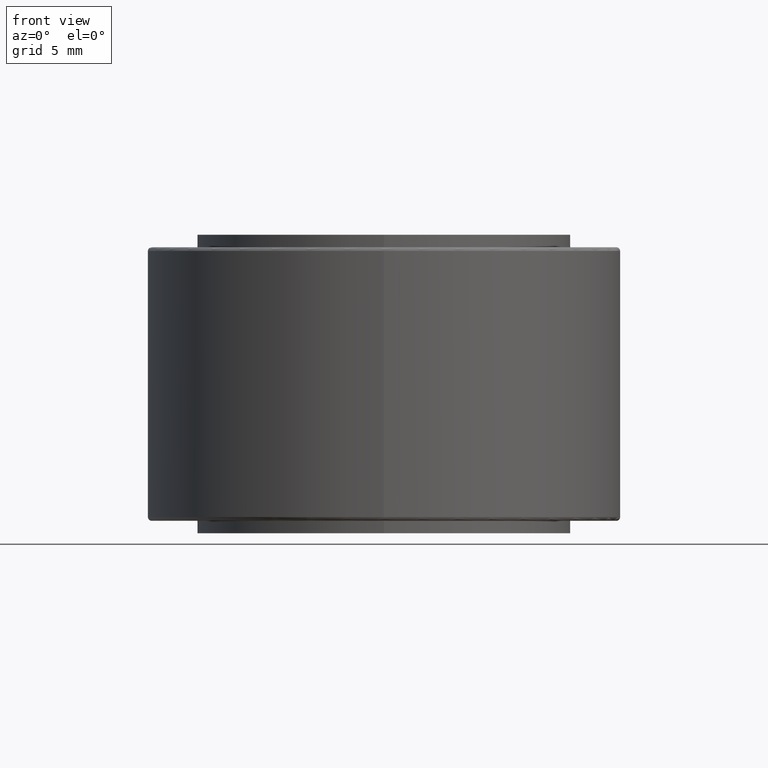
[diagram: clean part render]
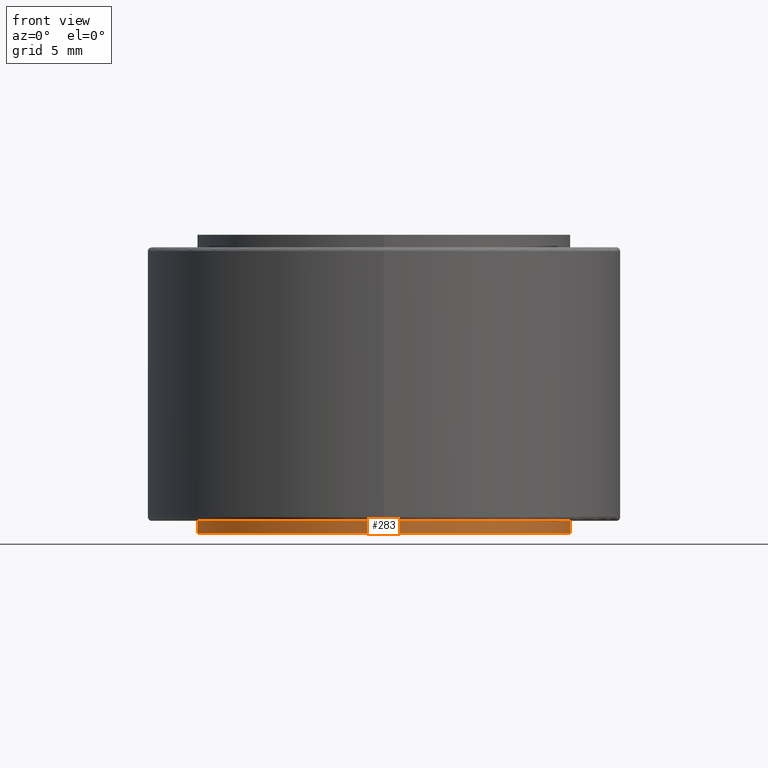
[diagram: same view with one face highlighted and labeled with its STEP entity id]
A machine part, front view. The second image highlights one B-rep face of the part: STEP entity #283.
In plain terms, the highlighted cylindrical surface (bore or boss wall) has radius 7.5 mm, axis along (0, 0, -1).
Its self-contained STEP definition (entity closure, byte-faithful):
#23=LINE('',#523,#31);
#31=VECTOR('',#434,7.5);
#39=CYLINDRICAL_SURFACE('',#345,7.5);
#71=FACE_OUTER_BOUND('',#96,.T.);
#96=EDGE_LOOP('',(#238,#239,#240,#241));
#125=CIRCLE('',#344,7.5);
#126=CIRCLE('',#346,7.5);
#150=VERTEX_POINT('',#518);
#151=VERTEX_POINT('',#521);
#181=EDGE_CURVE('',#150,#150,#125,.T.);
#182=EDGE_CURVE('',#151,#151,#126,.T.);
#183=EDGE_CURVE('',#151,#150,#23,.T.);
#238=ORIENTED_EDGE('',*,*,#182,.F.);
#239=ORIENTED_EDGE('',*,*,#183,.T.);
#240=ORIENTED_EDGE('',*,*,#181,.T.);
#241=ORIENTED_EDGE('',*,*,#183,.F.);
#283=ADVANCED_FACE('',(#71),#39,.T.);
#344=AXIS2_PLACEMENT_3D('',#519,#428,#429);
#345=AXIS2_PLACEMENT_3D('',#520,#430,#431);
#346=AXIS2_PLACEMENT_3D('',#522,#432,#433);
#428=DIRECTION('center_axis',(0.,3.06161699786839E-16,-1.));
#429=DIRECTION('ref_axis',(1.,0.,0.));
#430=DIRECTION('center_axis',(0.,3.06161699786839E-16,-1.));
#431=DIRECTION('ref_axis',(0.,1.,3.70074341541719E-16));
#432=DIRECTION('center_axis',(0.,3.06161699786839E-16,-1.));
#433=DIRECTION('ref_axis',(1.,0.,0.));
#434=DIRECTION('',(0.,-3.06161699786838E-16,1.));
#518=CARTESIAN_POINT('',(-9.18485099360515E-16,-7.5,-5.5));
#519=CARTESIAN_POINT('Origin',(0.,5.40808540497305E-16,-5.5));
#520=CARTESIAN_POINT('Origin',(0.,6.17348965444014E-16,-5.75));
#521=CARTESIAN_POINT('',(-9.18485099360515E-16,-7.5,-6.));
#522=CARTESIAN_POINT('Origin',(0.,6.93889390390724E-16,-6.));
#523=CARTESIAN_POINT('',(-9.18485099360515E-16,-7.5,-5.75));